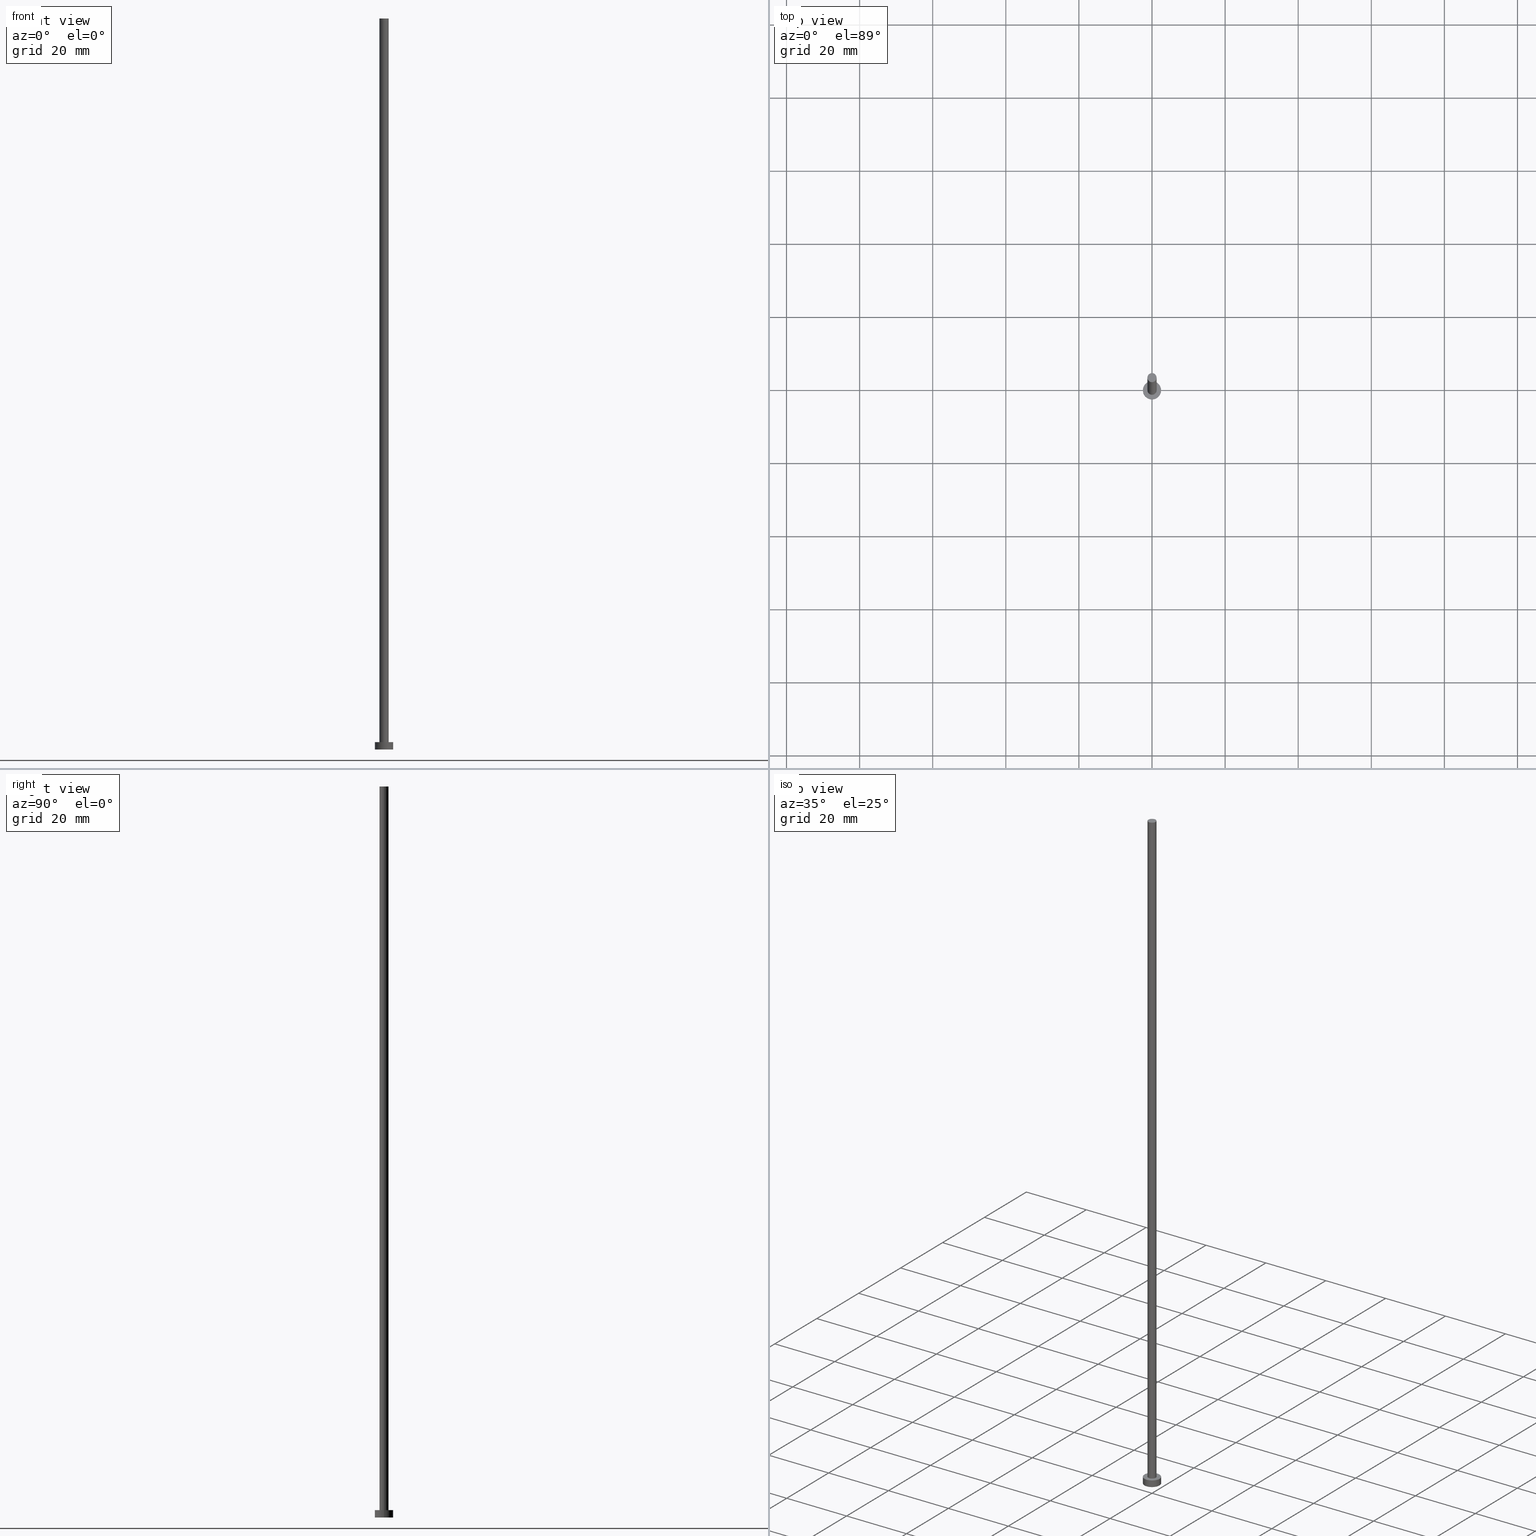
[diagram: canonical four-view strip — front | top / right | iso, engineering-drawing reading convention]
A machine part, canonical four-view strip (front | top / right | iso — engineering-drawing reading convention). The complete STEP part file that produces these views, byte-faithful:
ISO-10303-21;
HEADER;
FILE_DESCRIPTION (( 'STEP AP203' ),
    '1' );
FILE_NAME ('6508.STEP',
    '2023-02-13T14:27:57',
    ( '' ),
    ( '' ),
    'SwSTEP 2.0',
    'SolidWorks 2019',
    '' );
FILE_SCHEMA (( 'CONFIG_CONTROL_DESIGN' ));
ENDSEC;

DATA;
#1 = VERTEX_POINT ( 'NONE', #122 ) ;
#2 = CALENDAR_DATE ( 2023, 13, 2 ) ;
#3 = CIRCLE ( 'NONE', #114, 2.500000000000000000 ) ;
#4 = DIRECTION ( 'NONE',  ( -0.000000000000000000, -0.000000000000000000, -1.000000000000000000 ) ) ;
#5 = CARTESIAN_POINT ( 'NONE',  ( 0.000000000000000000, 0.000000000000000000, 2.000000000000000000 ) ) ;
#6 = DIRECTION ( 'NONE',  ( 0.000000000000000000, 0.000000000000000000, 1.000000000000000000 ) ) ;
#7 = APPROVAL_STATUS ( 'not_yet_approved' ) ;
#8 = AXIS2_PLACEMENT_3D ( 'NONE', #186, #21, #66 ) ;
#9 = DATE_AND_TIME ( #27, #120 ) ;
#10 = EDGE_LOOP ( 'NONE', ( #58, #74, #37, #15 ) ) ;
#11 = PERSON_AND_ORGANIZATION_ROLE ( 'design_supplier' ) ;
#12 = LOCAL_TIME ( 15, 27, 57.00000000000000000, #69 ) ;
#13 = VERTEX_POINT ( 'NONE', #102 ) ;
#14 = ADVANCED_FACE ( 'NONE', ( #78 ), #244, .T. ) ;
#15 = ORIENTED_EDGE ( 'NONE', *, *, #250, .T. ) ;
#16 = VERTEX_POINT ( 'NONE', #103 ) ;
#17 =( NAMED_UNIT ( * ) PLANE_ANGLE_UNIT ( ) SI_UNIT ( $, .RADIAN. ) );
#18 = DIRECTION ( 'NONE',  ( -1.000000000000000000, 0.000000000000000000, 0.000000000000000000 ) ) ;
#19 = DIRECTION ( 'NONE',  ( 0.000000000000000000, 0.000000000000000000, 1.000000000000000000 ) ) ;
#20 = ADVANCED_BREP_SHAPE_REPRESENTATION ( '6508', ( #117, #95 ), #53 ) ;
#21 = DIRECTION ( 'NONE',  ( 0.000000000000000000, 0.000000000000000000, 1.000000000000000000 ) ) ;
#22 = EDGE_LOOP ( 'NONE', ( #214, #177, #115, #136 ) ) ;
#23 = CIRCLE ( 'NONE', #247, 1.250000000000000000 ) ;
#24 = DIRECTION ( 'NONE',  ( 1.000000000000000000, 0.000000000000000000, -0.000000000000000000 ) ) ;
#25 = EDGE_CURVE ( 'NONE', #60, #109, #140, .T. ) ;
#26 = AXIS2_PLACEMENT_3D ( 'NONE', #5, #185, #248 ) ;
#27 = CALENDAR_DATE ( 2023, 13, 2 ) ;
#28 = ORIENTED_EDGE ( 'NONE', *, *, #61, .T. ) ;
#29 = APPROVAL ( #7, 'NEUR�EN�' ) ;
#30 = CALENDAR_DATE ( 2023, 13, 2 ) ;
#31 = CALENDAR_DATE ( 2023, 13, 2 ) ;
#32 = CC_DESIGN_APPROVAL ( #54, ( #76 ) ) ;
#33 = AXIS2_PLACEMENT_3D ( 'NONE', #42, #226, #144 ) ;
#34 = EDGE_CURVE ( 'NONE', #1, #240, #166, .T. ) ;
#35 = ORIENTED_EDGE ( 'NONE', *, *, #98, .F. ) ;
#36 = APPROVAL_PERSON_ORGANIZATION ( #188, #29, #235 ) ;
#37 = ORIENTED_EDGE ( 'NONE', *, *, #25, .T. ) ;
#38 = PERSON_AND_ORGANIZATION ( #148, #123 ) ;
#39 = DIRECTION ( 'NONE',  ( -1.000000000000000000, 0.000000000000000000, 0.000000000000000000 ) ) ;
#40 = ADVANCED_FACE ( 'NONE', ( #161 ), #118, .T. ) ;
#41 = DIRECTION ( 'NONE',  ( -0.000000000000000000, -0.000000000000000000, -1.000000000000000000 ) ) ;
#42 = CARTESIAN_POINT ( 'NONE',  ( 0.000000000000000000, 0.000000000000000000, 2.000000000000000000 ) ) ;
#43 = CARTESIAN_POINT ( 'NONE',  ( -2.500000000000000000, 0.000000000000000000, 0.000000000000000000 ) ) ;
#44 = CIRCLE ( 'NONE', #212, 1.250000000000000000 ) ;
#45 = CIRCLE ( 'NONE', #77, 1.250000000000000000 ) ;
#46 = APPROVAL_STATUS ( 'not_yet_approved' ) ;
#47 = FACE_BOUND ( 'NONE', #96, .T. ) ;
#48 = PERSON_AND_ORGANIZATION_ROLE ( 'creator' ) ;
#49 = DIRECTION ( 'NONE',  ( 0.000000000000000000, 0.000000000000000000, 1.000000000000000000 ) ) ;
#50 = UNCERTAINTY_MEASURE_WITH_UNIT (LENGTH_MEASURE( 1.000000000000000082E-05 ), #138, 'distance_accuracy_value', 'NONE');
#51 = PERSON_AND_ORGANIZATION_ROLE ( 'design_owner' ) ;
#52 = ORIENTED_EDGE ( 'NONE', *, *, #61, .F. ) ;
#53 =( GEOMETRIC_REPRESENTATION_CONTEXT ( 3 ) GLOBAL_UNCERTAINTY_ASSIGNED_CONTEXT ( ( #50 ) ) GLOBAL_UNIT_ASSIGNED_CONTEXT ( ( #138, #17, #243 ) ) REPRESENTATION_CONTEXT ( 'NONE', 'WORKASPACE' ) );
#54 = APPROVAL ( #241, 'NEUR�EN�' ) ;
#55 = FACE_OUTER_BOUND ( 'NONE', #174, .T. ) ;
#56 = DIRECTION ( 'NONE',  ( 0.000000000000000000, 0.000000000000000000, 1.000000000000000000 ) ) ;
#57 = ADVANCED_FACE ( 'NONE', ( #100 ), #246, .T. ) ;
#58 = ORIENTED_EDGE ( 'NONE', *, *, #34, .F. ) ;
#59 = EDGE_LOOP ( 'NONE', ( #28, #73 ) ) ;
#60 = VERTEX_POINT ( 'NONE', #182 ) ;
#61 = EDGE_CURVE ( 'NONE', #217, #156, #45, .T. ) ;
#62 = CARTESIAN_POINT ( 'NONE',  ( 0.000000000000000000, 0.000000000000000000, 200.0000000000000000 ) ) ;
#63 = CARTESIAN_POINT ( 'NONE',  ( 2.500000000000000000, 3.061616997868383141E-16, 0.000000000000000000 ) ) ;
#64 = FACE_OUTER_BOUND ( 'NONE', #22, .T. ) ;
#65 = CARTESIAN_POINT ( 'NONE',  ( 1.250000000000000000, 1.530808498934191571E-16, 200.0000000000000000 ) ) ;
#66 = DIRECTION ( 'NONE',  ( 1.000000000000000000, 0.000000000000000000, 0.000000000000000000 ) ) ;
#67 = APPLICATION_PROTOCOL_DEFINITION ( 'international standard', 'config_control_design', 1994, #159 ) ;
#68 = DIRECTION ( 'NONE',  ( -0.000000000000000000, -0.000000000000000000, -1.000000000000000000 ) ) ;
#69 = COORDINATED_UNIVERSAL_TIME_OFFSET ( 1, 0, .AHEAD. ) ;
#70 = CARTESIAN_POINT ( 'NONE',  ( 1.250000000000000000, 1.530808498934191571E-16, 200.0000000000000000 ) ) ;
#71 = DATE_TIME_ROLE ( 'creation_date' ) ;
#72 = APPROVAL_ROLE ( '' ) ;
#73 = ORIENTED_EDGE ( 'NONE', *, *, #90, .T. ) ;
#74 = ORIENTED_EDGE ( 'NONE', *, *, #242, .F. ) ;
#75 = COORDINATED_UNIVERSAL_TIME_OFFSET ( 1, 0, .AHEAD. ) ;
#76 = SECURITY_CLASSIFICATION ( '', '', #255 ) ;
#77 = AXIS2_PLACEMENT_3D ( 'NONE', #178, #19, #162 ) ;
#78 = FACE_OUTER_BOUND ( 'NONE', #135, .T. ) ;
#79 = DATE_AND_TIME ( #31, #113 ) ;
#80 = ADVANCED_FACE ( 'NONE', ( #64 ), #142, .T. ) ;
#81 = CARTESIAN_POINT ( 'NONE',  ( -2.500000000000000000, 0.000000000000000000, 2.000000000000000000 ) ) ;
#82 = CIRCLE ( 'NONE', #26, 2.500000000000000000 ) ;
#83 = PRODUCT_RELATED_PRODUCT_CATEGORY ( 'detail', '', ( #151 ) ) ;
#84 = CARTESIAN_POINT ( 'NONE',  ( 0.000000000000000000, 0.000000000000000000, 0.000000000000000000 ) ) ;
#85 = CARTESIAN_POINT ( 'NONE',  ( -1.250000000000000000, 0.000000000000000000, 200.0000000000000000 ) ) ;
#86 = DIRECTION ( 'NONE',  ( 1.000000000000000000, 0.000000000000000000, 0.000000000000000000 ) ) ;
#87 = FACE_OUTER_BOUND ( 'NONE', #152, .T. ) ;
#88 = CARTESIAN_POINT ( 'NONE',  ( 0.000000000000000000, 0.000000000000000000, 0.000000000000000000 ) ) ;
#89 = PRODUCT_DEFINITION_SHAPE ( 'NONE', 'NONE',  #219 ) ;
#90 = EDGE_CURVE ( 'NONE', #156, #217, #180, .T. ) ;
#91 = DESIGN_CONTEXT ( 'detailed design', #134, 'design' ) ;
#92 = AXIS2_PLACEMENT_3D ( 'NONE', #62, #202, #18 ) ;
#93 = ORIENTED_EDGE ( 'NONE', *, *, #242, .T. ) ;
#94 = ORIENTED_EDGE ( 'NONE', *, *, #98, .T. ) ;
#95 = AXIS2_PLACEMENT_3D ( 'NONE', #169, #105, #86 ) ;
#96 = EDGE_LOOP ( 'NONE', ( #193, #116 ) ) ;
#97 = CARTESIAN_POINT ( 'NONE',  ( 0.000000000000000000, 0.000000000000000000, 200.0000000000000000 ) ) ;
#98 = EDGE_CURVE ( 'NONE', #217, #13, #249, .T. ) ;
#99 = LOCAL_TIME ( 15, 27, 57.00000000000000000, #194 ) ;
#100 = FACE_OUTER_BOUND ( 'NONE', #10, .T. ) ;
#101 = DIRECTION ( 'NONE',  ( 1.000000000000000000, 0.000000000000000000, 0.000000000000000000 ) ) ;
#102 = CARTESIAN_POINT ( 'NONE',  ( -1.250000000000000000, 0.000000000000000000, 2.000000000000000000 ) ) ;
#103 = CARTESIAN_POINT ( 'NONE',  ( 1.250000000000000000, 1.530808498934191571E-16, 2.000000000000000000 ) ) ;
#104 = CARTESIAN_POINT ( 'NONE',  ( 0.000000000000000000, 0.000000000000000000, 2.000000000000000000 ) ) ;
#105 = DIRECTION ( 'NONE',  ( 0.000000000000000000, 0.000000000000000000, 1.000000000000000000 ) ) ;
#106 = PLANE ( 'NONE',  #129 ) ;
#107 = CLOSED_SHELL ( 'NONE', ( #40, #80, #57, #153, #197, #14, #173 ) ) ;
#108 = DATE_AND_TIME ( #232, #12 ) ;
#109 = VERTEX_POINT ( 'NONE', #43 ) ;
#110 = COORDINATED_UNIVERSAL_TIME_OFFSET ( 1, 0, .AHEAD. ) ;
#111 = CC_DESIGN_DATE_AND_TIME_ASSIGNMENT ( #236, #157, ( #76 ) ) ;
#112 = VECTOR ( 'NONE', #68, 1000.000000000000000 ) ;
#113 = LOCAL_TIME ( 15, 27, 57.00000000000000000, #119 ) ;
#114 = AXIS2_PLACEMENT_3D ( 'NONE', #124, #56, #251 ) ;
#115 = ORIENTED_EDGE ( 'NONE', *, *, #145, .T. ) ;
#116 = ORIENTED_EDGE ( 'NONE', *, *, #167, .F. ) ;
#117 = MANIFOLD_SOLID_BREP ( 'P�idat vysunut�m3', #107 ) ;
#118 = CYLINDRICAL_SURFACE ( 'NONE', #92, 1.250000000000000000 ) ;
#119 = COORDINATED_UNIVERSAL_TIME_OFFSET ( 1, 0, .AHEAD. ) ;
#120 = LOCAL_TIME ( 15, 27, 57.00000000000000000, #110 ) ;
#121 = DIRECTION ( 'NONE',  ( -0.000000000000000000, -0.000000000000000000, -1.000000000000000000 ) ) ;
#122 = CARTESIAN_POINT ( 'NONE',  ( 2.500000000000000000, 3.061616997868383141E-16, 2.000000000000000000 ) ) ;
#123 = ORGANIZATION ( 'NEUR�EN�', 'NEUR�EN�', '' ) ;
#124 = CARTESIAN_POINT ( 'NONE',  ( 0.000000000000000000, 0.000000000000000000, 0.000000000000000000 ) ) ;
#125 = AXIS2_PLACEMENT_3D ( 'NONE', #224, #121, #39 ) ;
#126 = FACE_OUTER_BOUND ( 'NONE', #59, .T. ) ;
#127 = PERSON_AND_ORGANIZATION ( #148, #123 ) ;
#128 = DATE_AND_TIME ( #30, #99 ) ;
#129 = AXIS2_PLACEMENT_3D ( 'NONE', #208, #234, #24 ) ;
#130 = CC_DESIGN_PERSON_AND_ORGANIZATION_ASSIGNMENT ( #38, #179, ( #76 ) ) ;
#131 = CARTESIAN_POINT ( 'NONE',  ( 0.000000000000000000, 0.000000000000000000, 2.000000000000000000 ) ) ;
#132 = PRODUCT_DEFINITION_FORMATION_WITH_SPECIFIED_SOURCE ( 'LIBOVOLN�', '', #151, .NOT_KNOWN. ) ;
#133 = ORIENTED_EDGE ( 'NONE', *, *, #250, .F. ) ;
#134 = APPLICATION_CONTEXT ( 'configuration controlled 3d designs of mechanical parts and assemblies' ) ;
#135 = EDGE_LOOP ( 'NONE', ( #222, #52, #94, #254 ) ) ;
#136 = ORIENTED_EDGE ( 'NONE', *, *, #25, .F. ) ;
#137 = APPROVAL_DATE_TIME ( #79, #54 ) ;
#138 =( LENGTH_UNIT ( ) NAMED_UNIT ( * ) SI_UNIT ( .MILLI., .METRE. ) );
#139 = PERSON_AND_ORGANIZATION ( #148, #123 ) ;
#140 = LINE ( 'NONE', #81, #221 ) ;
#141 = AXIS2_PLACEMENT_3D ( 'NONE', #104, #6, #210 ) ;
#142 = CYLINDRICAL_SURFACE ( 'NONE', #33, 2.500000000000000000 ) ;
#143 = CC_DESIGN_PERSON_AND_ORGANIZATION_ASSIGNMENT ( #192, #11, ( #132 ) ) ;
#144 = DIRECTION ( 'NONE',  ( -1.000000000000000000, 0.000000000000000000, 0.000000000000000000 ) ) ;
#145 = EDGE_CURVE ( 'NONE', #240, #109, #3, .T. ) ;
#146 = PERSON_AND_ORGANIZATION ( #148, #123 ) ;
#147 = APPROVAL_DATE_TIME ( #108, #29 ) ;
#148 = PERSON ( 'NEUR�EN�', 'NEUR�EN�', 'NEUR�EN�', ('NEUR�EN�'), ('NEUR�EN�'), ('NEUR�EN�') ) ;
#149 = PERSON_AND_ORGANIZATION ( #148, #123 ) ;
#150 = DIRECTION ( 'NONE',  ( 1.000000000000000000, 0.000000000000000000, 0.000000000000000000 ) ) ;
#151 = PRODUCT ( '6508', '6508', '', ( #187 ) ) ;
#152 = EDGE_LOOP ( 'NONE', ( #133, #216 ) ) ;
#153 = ADVANCED_FACE ( 'NONE', ( #47, #55 ), #231, .T. ) ;
#154 = ORIENTED_EDGE ( 'NONE', *, *, #90, .F. ) ;
#155 = CC_DESIGN_PERSON_AND_ORGANIZATION_ASSIGNMENT ( #146, #51, ( #151 ) ) ;
#156 = VERTEX_POINT ( 'NONE', #70 ) ;
#157 = DATE_TIME_ROLE ( 'classification_date' ) ;
#158 = AXIS2_PLACEMENT_3D ( 'NONE', #88, #49, #190 ) ;
#159 = APPLICATION_CONTEXT ( 'configuration controlled 3d designs of mechanical parts and assemblies' ) ;
#160 = DIRECTION ( 'NONE',  ( -0.000000000000000000, -0.000000000000000000, -1.000000000000000000 ) ) ;
#161 = FACE_OUTER_BOUND ( 'NONE', #238, .T. ) ;
#162 = DIRECTION ( 'NONE',  ( 1.000000000000000000, 0.000000000000000000, 0.000000000000000000 ) ) ;
#163 = APPROVAL_PERSON_ORGANIZATION ( #149, #191, #211 ) ;
#164 = CARTESIAN_POINT ( 'NONE',  ( 2.500000000000000000, 3.061616997868383141E-16, 2.000000000000000000 ) ) ;
#165 = LINE ( 'NONE', #65, #175 ) ;
#166 = LINE ( 'NONE', #164, #207 ) ;
#167 = EDGE_CURVE ( 'NONE', #16, #13, #23, .T. ) ;
#168 = CC_DESIGN_SECURITY_CLASSIFICATION ( #76, ( #132 ) ) ;
#169 = CARTESIAN_POINT ( 'NONE',  ( 0.000000000000000000, 0.000000000000000000, 0.000000000000000000 ) ) ;
#170 = DIRECTION ( 'NONE',  ( 1.000000000000000000, 0.000000000000000000, -0.000000000000000000 ) ) ;
#171 = CIRCLE ( 'NONE', #215, 2.500000000000000000 ) ;
#172 = DIRECTION ( 'NONE',  ( 0.000000000000000000, 0.000000000000000000, 1.000000000000000000 ) ) ;
#173 = ADVANCED_FACE ( 'NONE', ( #126 ), #106, .T. ) ;
#174 = EDGE_LOOP ( 'NONE', ( #93, #200 ) ) ;
#175 = VECTOR ( 'NONE', #41, 1000.000000000000000 ) ;
#176 = EDGE_CURVE ( 'NONE', #1, #60, #220, .T. ) ;
#177 = ORIENTED_EDGE ( 'NONE', *, *, #34, .T. ) ;
#178 = CARTESIAN_POINT ( 'NONE',  ( 0.000000000000000000, 0.000000000000000000, 200.0000000000000000 ) ) ;
#179 = PERSON_AND_ORGANIZATION_ROLE ( 'classification_officer' ) ;
#180 = CIRCLE ( 'NONE', #8, 1.250000000000000000 ) ;
#181 = DIRECTION ( 'NONE',  ( 1.000000000000000000, 0.000000000000000000, 0.000000000000000000 ) ) ;
#182 = CARTESIAN_POINT ( 'NONE',  ( -2.500000000000000000, 0.000000000000000000, 2.000000000000000000 ) ) ;
#183 = ORIENTED_EDGE ( 'NONE', *, *, #167, .T. ) ;
#184 = AXIS2_PLACEMENT_3D ( 'NONE', #131, #172, #170 ) ;
#185 = DIRECTION ( 'NONE',  ( 0.000000000000000000, 0.000000000000000000, 1.000000000000000000 ) ) ;
#186 = CARTESIAN_POINT ( 'NONE',  ( 0.000000000000000000, 0.000000000000000000, 200.0000000000000000 ) ) ;
#187 = MECHANICAL_CONTEXT ( 'NONE', #159, 'mechanical' ) ;
#188 = PERSON_AND_ORGANIZATION ( #148, #123 ) ;
#189 = PLANE ( 'NONE',  #158 ) ;
#190 = DIRECTION ( 'NONE',  ( 1.000000000000000000, 0.000000000000000000, -0.000000000000000000 ) ) ;
#191 = APPROVAL ( #46, 'NEUR�EN�' ) ;
#192 = PERSON_AND_ORGANIZATION ( #148, #123 ) ;
#193 = ORIENTED_EDGE ( 'NONE', *, *, #204, .F. ) ;
#194 = COORDINATED_UNIVERSAL_TIME_OFFSET ( 1, 0, .AHEAD. ) ;
#195 = CARTESIAN_POINT ( 'NONE',  ( 0.000000000000000000, 0.000000000000000000, 2.000000000000000000 ) ) ;
#196 = CC_DESIGN_APPROVAL ( #29, ( #132 ) ) ;
#197 = ADVANCED_FACE ( 'NONE', ( #87 ), #189, .F. ) ;
#198 = CC_DESIGN_APPROVAL ( #191, ( #219 ) ) ;
#199 = ORIENTED_EDGE ( 'NONE', *, *, #205, .T. ) ;
#200 = ORIENTED_EDGE ( 'NONE', *, *, #176, .T. ) ;
#201 = CARTESIAN_POINT ( 'NONE',  ( 0.000000000000000000, 0.000000000000000000, 2.000000000000000000 ) ) ;
#202 = DIRECTION ( 'NONE',  ( -0.000000000000000000, -0.000000000000000000, -1.000000000000000000 ) ) ;
#203 = APPROVAL_PERSON_ORGANIZATION ( #139, #54, #72 ) ;
#204 = EDGE_CURVE ( 'NONE', #13, #16, #44, .T. ) ;
#205 = EDGE_CURVE ( 'NONE', #156, #16, #165, .T. ) ;
#206 = DIRECTION ( 'NONE',  ( -1.000000000000000000, 0.000000000000000000, 0.000000000000000000 ) ) ;
#207 = VECTOR ( 'NONE', #228, 1000.000000000000000 ) ;
#208 = CARTESIAN_POINT ( 'NONE',  ( 0.000000000000000000, 0.000000000000000000, 200.0000000000000000 ) ) ;
#209 = PERSON_AND_ORGANIZATION_ROLE ( 'creator' ) ;
#210 = DIRECTION ( 'NONE',  ( 1.000000000000000000, 0.000000000000000000, 0.000000000000000000 ) ) ;
#211 = APPROVAL_ROLE ( '' ) ;
#212 = AXIS2_PLACEMENT_3D ( 'NONE', #201, #245, #181 ) ;
#213 = PERSON_AND_ORGANIZATION ( #148, #123 ) ;
#214 = ORIENTED_EDGE ( 'NONE', *, *, #176, .F. ) ;
#215 = AXIS2_PLACEMENT_3D ( 'NONE', #84, #225, #101 ) ;
#216 = ORIENTED_EDGE ( 'NONE', *, *, #145, .F. ) ;
#217 = VERTEX_POINT ( 'NONE', #223 ) ;
#218 = SHAPE_DEFINITION_REPRESENTATION ( #89, #20 ) ;
#219 = PRODUCT_DEFINITION ( 'NEZN�M�', '', #132, #91 ) ;
#220 = CIRCLE ( 'NONE', #141, 2.500000000000000000 ) ;
#221 = VECTOR ( 'NONE', #160, 1000.000000000000000 ) ;
#222 = ORIENTED_EDGE ( 'NONE', *, *, #205, .F. ) ;
#223 = CARTESIAN_POINT ( 'NONE',  ( -1.250000000000000000, 0.000000000000000000, 200.0000000000000000 ) ) ;
#224 = CARTESIAN_POINT ( 'NONE',  ( 0.000000000000000000, 0.000000000000000000, 2.000000000000000000 ) ) ;
#225 = DIRECTION ( 'NONE',  ( 0.000000000000000000, 0.000000000000000000, 1.000000000000000000 ) ) ;
#226 = DIRECTION ( 'NONE',  ( -0.000000000000000000, -0.000000000000000000, -1.000000000000000000 ) ) ;
#227 = CC_DESIGN_DATE_AND_TIME_ASSIGNMENT ( #9, #71, ( #219 ) ) ;
#228 = DIRECTION ( 'NONE',  ( -0.000000000000000000, -0.000000000000000000, -1.000000000000000000 ) ) ;
#229 = LOCAL_TIME ( 15, 27, 57.00000000000000000, #75 ) ;
#230 = APPLICATION_PROTOCOL_DEFINITION ( 'international standard', 'config_control_design', 1994, #134 ) ;
#231 = PLANE ( 'NONE',  #184 ) ;
#232 = CALENDAR_DATE ( 2023, 13, 2 ) ;
#233 = CC_DESIGN_PERSON_AND_ORGANIZATION_ASSIGNMENT ( #213, #209, ( #219 ) ) ;
#234 = DIRECTION ( 'NONE',  ( 0.000000000000000000, 0.000000000000000000, 1.000000000000000000 ) ) ;
#235 = APPROVAL_ROLE ( '' ) ;
#236 = DATE_AND_TIME ( #2, #229 ) ;
#237 = DIRECTION ( 'NONE',  ( 0.000000000000000000, 0.000000000000000000, 1.000000000000000000 ) ) ;
#238 = EDGE_LOOP ( 'NONE', ( #154, #199, #183, #35 ) ) ;
#239 = AXIS2_PLACEMENT_3D ( 'NONE', #97, #4, #206 ) ;
#240 = VERTEX_POINT ( 'NONE', #63 ) ;
#241 = APPROVAL_STATUS ( 'not_yet_approved' ) ;
#242 = EDGE_CURVE ( 'NONE', #60, #1, #82, .T. ) ;
#243 =( NAMED_UNIT ( * ) SI_UNIT ( $, .STERADIAN. ) SOLID_ANGLE_UNIT ( ) );
#244 = CYLINDRICAL_SURFACE ( 'NONE', #239, 1.250000000000000000 ) ;
#245 = DIRECTION ( 'NONE',  ( 0.000000000000000000, 0.000000000000000000, 1.000000000000000000 ) ) ;
#246 = CYLINDRICAL_SURFACE ( 'NONE', #125, 2.500000000000000000 ) ;
#247 = AXIS2_PLACEMENT_3D ( 'NONE', #195, #237, #150 ) ;
#248 = DIRECTION ( 'NONE',  ( 1.000000000000000000, 0.000000000000000000, 0.000000000000000000 ) ) ;
#249 = LINE ( 'NONE', #85, #112 ) ;
#250 = EDGE_CURVE ( 'NONE', #109, #240, #171, .T. ) ;
#251 = DIRECTION ( 'NONE',  ( 1.000000000000000000, 0.000000000000000000, 0.000000000000000000 ) ) ;
#252 = APPROVAL_DATE_TIME ( #128, #191 ) ;
#253 = CC_DESIGN_PERSON_AND_ORGANIZATION_ASSIGNMENT ( #127, #48, ( #132 ) ) ;
#254 = ORIENTED_EDGE ( 'NONE', *, *, #204, .T. ) ;
#255 = SECURITY_CLASSIFICATION_LEVEL ( 'unclassified' ) ;
ENDSEC;
END-ISO-10303-21;
